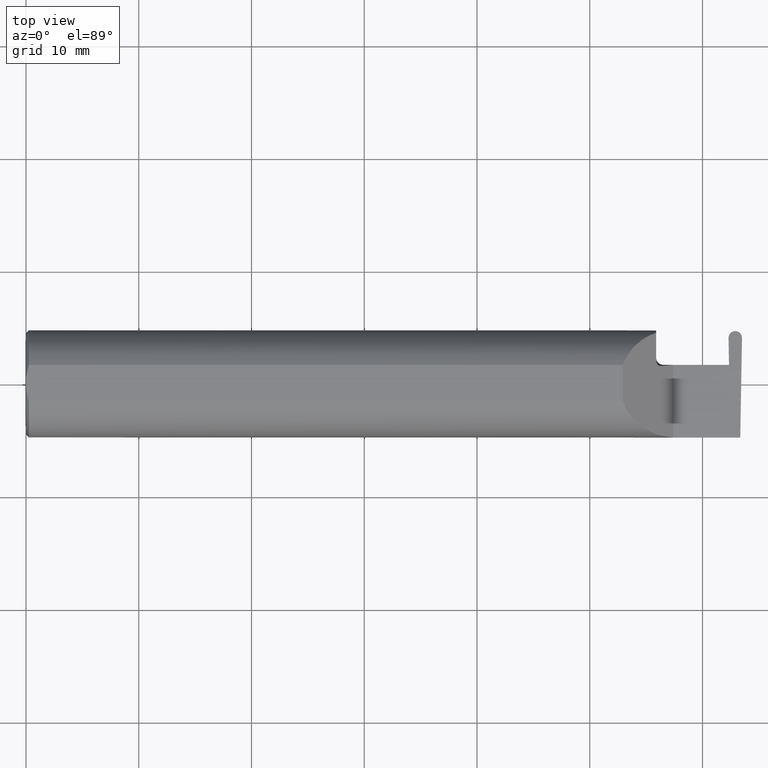
[diagram: clean part render]
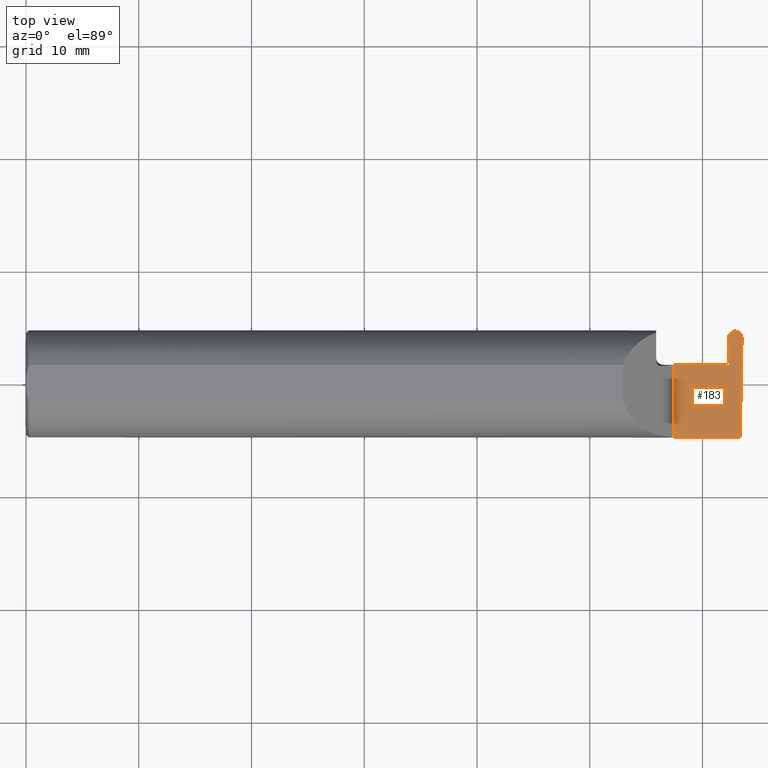
[diagram: same view with one face highlighted and labeled with its STEP entity id]
A machine part, top view. The second image highlights one B-rep face of the part: STEP entity #183.
In plain terms, the highlighted planar face has unit normal (-0, 0, -1).
Its self-contained STEP definition (entity closure, byte-faithful):
#1 = CARTESIAN_POINT ( 'NONE',  ( 2.476759731742398163, 0.1846500000000000363, 0.000000000000000000 ) ) ;
#10 = ORIENTED_EDGE ( 'NONE', *, *, #359, .F. ) ;
#19 = ORIENTED_EDGE ( 'NONE', *, *, #560, .F. ) ;
#21 = DIRECTION ( 'NONE',  ( -0.01745240643727575397, -0.9998476951563912696, 0.000000000000000000 ) ) ;
#26 = VECTOR ( 'NONE', #391, 39.37007874015748143 ) ;
#42 = CARTESIAN_POINT ( 'NONE',  ( 2.452963582209922055, 0.1607195194005952010, 0.000000000000000000 ) ) ;
#68 = LINE ( 'NONE', #515, #334 ) ;
#74 = LINE ( 'NONE', #607, #161 ) ;
#82 = AXIS2_PLACEMENT_3D ( 'NONE', #647, #383, #498 ) ;
#94 = CARTESIAN_POINT ( 'NONE',  ( 2.454605571778825102, 0.06664999999999998703, 0.000000000000000000 ) ) ;
#97 = LINE ( 'NONE', #42, #623 ) ;
#115 = CARTESIAN_POINT ( 'NONE',  ( 2.260000000000000231, 0.06664999999999984825, 2.939152317953647352E-17 ) ) ;
#118 = PLANE ( 'NONE',  #82 ) ;
#152 = CARTESIAN_POINT ( 'NONE',  ( 2.476200268257601866, 0.1846500000000000363, 0.000000000000000000 ) ) ;
#161 = VECTOR ( 'NONE', #21, 39.37007874015748854 ) ;
#171 = ORIENTED_EDGE ( 'NONE', *, *, #314, .T. ) ;
#172 = CARTESIAN_POINT ( 'NONE',  ( 2.260000000000000231, -0.2500000000000000555, 2.939152317953647352E-17 ) ) ;
#183 = ADVANCED_FACE ( 'NONE', ( #261 ), #118, .F. ) ;
#190 = ORIENTED_EDGE ( 'NONE', *, *, #593, .F. ) ;
#191 = CARTESIAN_POINT ( 'NONE',  ( 2.476759731742398163, 0.1846500000000000363, 0.000000000000000000 ) ) ;
#206 = CARTESIAN_POINT ( 'NONE',  ( 2.493920841729410753, -0.1873499999999999888, 0.000000000000000000 ) ) ;
#209 = VERTEX_POINT ( 'NONE', #388 ) ;
#228 = ORIENTED_EDGE ( 'NONE', *, *, #701, .F. ) ;
#229 =( BOUNDED_CURVE ( )  B_SPLINE_CURVE ( 3, ( #152, #250, #689, #311 ),
 .UNSPECIFIED., .F., .F. ) 
 B_SPLINE_CURVE_WITH_KNOTS ( ( 4, 4 ),
 ( 6.164995997523367244, 7.741595932998476925 ),
 .UNSPECIFIED. ) 
 CURVE ( )  GEOMETRIC_REPRESENTATION_ITEM ( )  RATIONAL_B_SPLINE_CURVE ( ( 1.000000000000000000, 0.8033679476376971440, 0.8033679476376971440, 1.000000000000000000 ) ) 
 REPRESENTATION_ITEM ( '' )  );
#235 = CARTESIAN_POINT ( 'NONE',  ( 2.476200268257601866, 0.1846500000000000363, 0.000000000000000000 ) ) ;
#236 = VERTEX_POINT ( 'NONE', #115 ) ;
#240 = DIRECTION ( 'NONE',  ( 1.000000000000000000, -0.000000000000000000, -0.000000000000000000 ) ) ;
#241 = VERTEX_POINT ( 'NONE', #636 ) ;
#246 = ORIENTED_EDGE ( 'NONE', *, *, #454, .T. ) ;
#250 = CARTESIAN_POINT ( 'NONE',  ( 2.462360552522071533, 0.1846499999999998698, 1.730980851401795297E-18 ) ) ;
#257 = EDGE_CURVE ( 'NONE', #241, #236, #694, .T. ) ;
#261 = FACE_OUTER_BOUND ( 'NONE', #462, .T. ) ;
#265 = VECTOR ( 'NONE', #473, 39.37007874015748143 ) ;
#286 = DIRECTION ( 'NONE',  ( -1.000000000000000000, -0.000000000000000000, -0.000000000000000000 ) ) ;
#295 = LINE ( 'NONE', #628, #602 ) ;
#302 = LINE ( 'NONE', #519, #603 ) ;
#310 = EDGE_CURVE ( 'NONE', #236, #448, #302, .T. ) ;
#311 = CARTESIAN_POINT ( 'NONE',  ( 2.452979680742863433, 0.1597972350660649687, 0.000000000000000000 ) ) ;
#314 = EDGE_CURVE ( 'NONE', #601, #524, #229, .T. ) ;
#318 = VERTEX_POINT ( 'NONE', #206 ) ;
#322 = CARTESIAN_POINT ( 'NONE',  ( 2.499980319257137484, 0.1597972350660649965, 0.000000000000000000 ) ) ;
#334 = VECTOR ( 'NONE', #286, 39.37007874015748143 ) ;
#359 = EDGE_CURVE ( 'NONE', #448, #581, #423, .T. ) ;
#383 = DIRECTION ( 'NONE',  ( -1.224646799147353947E-16, 0.000000000000000000, -1.000000000000000000 ) ) ;
#388 = CARTESIAN_POINT ( 'NONE',  ( 2.499980319257137484, 0.1597972350660649965, 0.000000000000000000 ) ) ;
#391 = DIRECTION ( 'NONE',  ( -0.000000000000000000, 1.000000000000000000, -0.000000000000000000 ) ) ;
#404 = VERTEX_POINT ( 'NONE', #191 ) ;
#412 = EDGE_CURVE ( 'NONE', #581, #524, #97, .T. ) ;
#423 = LINE ( 'NONE', #94, #265 ) ;
#430 = CARTESIAN_POINT ( 'NONE',  ( 2.452979680742863433, 0.1597972350660649687, 0.000000000000000000 ) ) ;
#447 = CARTESIAN_POINT ( 'NONE',  ( 2.454605571778825102, 0.06664999999999998703, 0.000000000000000000 ) ) ;
#448 = VERTEX_POINT ( 'NONE', #638 ) ;
#454 = EDGE_CURVE ( 'NONE', #209, #404, #455, .T. ) ;
#455 =( BOUNDED_CURVE ( )  B_SPLINE_CURVE ( 3, ( #322, #656, #542, #1 ),
 .UNSPECIFIED., .F., .F. ) 
 B_SPLINE_CURVE_WITH_KNOTS ( ( 4, 4 ),
 ( 1.683182027770901756, 3.259781963246032532 ),
 .UNSPECIFIED. ) 
 CURVE ( )  GEOMETRIC_REPRESENTATION_ITEM ( )  RATIONAL_B_SPLINE_CURVE ( ( 1.000000000000000000, 0.8033679476376921480, 0.8033679476376921480, 1.000000000000000000 ) ) 
 REPRESENTATION_ITEM ( '' )  );
#462 = EDGE_LOOP ( 'NONE', ( #228, #171, #618, #10, #517, #667, #19, #190, #246 ) ) ;
#467 = DIRECTION ( 'NONE',  ( 1.000000000000000000, 4.724792446347703932E-16, 0.000000000000000000 ) ) ;
#473 = DIRECTION ( 'NONE',  ( 1.000000000000000000, 9.674096982053045718E-15, -0.000000000000000000 ) ) ;
#482 = DIRECTION ( 'NONE',  ( -0.01745240643727800564, 0.9998476951563912696, -0.000000000000000000 ) ) ;
#498 = DIRECTION ( 'NONE',  ( -1.000000000000000000, 0.000000000000000000, 1.224646799147353947E-16 ) ) ;
#515 = CARTESIAN_POINT ( 'NONE',  ( 3.749399456654646757E-32, -0.1873499999999999610, 3.061616997868383634E-16 ) ) ;
#517 = ORIENTED_EDGE ( 'NONE', *, *, #310, .F. ) ;
#519 = CARTESIAN_POINT ( 'NONE',  ( 2.200000000000000178, 0.06664999999999995928, 3.673940397442061963E-17 ) ) ;
#524 = VERTEX_POINT ( 'NONE', #430 ) ;
#542 = CARTESIAN_POINT ( 'NONE',  ( 2.490599447477928940, 0.1846500000000002029, -1.730980851401757164E-18 ) ) ;
#560 = EDGE_CURVE ( 'NONE', #318, #241, #68, .T. ) ;
#581 = VERTEX_POINT ( 'NONE', #447 ) ;
#593 = EDGE_CURVE ( 'NONE', #209, #318, #74, .T. ) ;
#601 = VERTEX_POINT ( 'NONE', #235 ) ;
#602 = VECTOR ( 'NONE', #240, 39.37007874015748143 ) ;
#603 = VECTOR ( 'NONE', #467, 39.37007874015748143 ) ;
#607 = CARTESIAN_POINT ( 'NONE',  ( 2.499996417790078862, 0.1607195194005952565, 0.000000000000000000 ) ) ;
#618 = ORIENTED_EDGE ( 'NONE', *, *, #412, .F. ) ;
#623 = VECTOR ( 'NONE', #482, 39.37007874015748143 ) ;
#628 = CARTESIAN_POINT ( 'NONE',  ( -3.937007874019685528E-05, 0.1846500000000000363, 0.000000000000000000 ) ) ;
#636 = CARTESIAN_POINT ( 'NONE',  ( 2.260000000000000231, -0.1873499999999999888, 2.939152317953647352E-17 ) ) ;
#638 = CARTESIAN_POINT ( 'NONE',  ( 2.447545874117295739, 0.06664999999999991764, 0.000000000000000000 ) ) ;
#647 = CARTESIAN_POINT ( 'NONE',  ( 2.500000000000000000, -0.2500000000000000555, 0.000000000000000000 ) ) ;
#656 = CARTESIAN_POINT ( 'NONE',  ( 2.500234130889193107, 0.1743380937279883913, -2.910889271442052436E-18 ) ) ;
#667 = ORIENTED_EDGE ( 'NONE', *, *, #257, .F. ) ;
#689 = CARTESIAN_POINT ( 'NONE',  ( 2.452725869110807810, 0.1743380937279881138, 2.910889271442055903E-18 ) ) ;
#694 = LINE ( 'NONE', #172, #26 ) ;
#701 = EDGE_CURVE ( 'NONE', #601, #404, #295, .T. ) ;